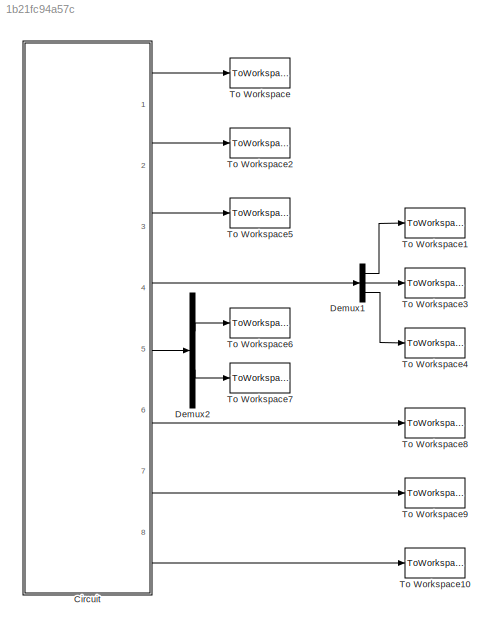
MODEL slx_1b21fc94a57c
KIND model
CONFIG AbsTol = auto
CONFIG EnableMultiTasking = off
CONFIG FixedStep = 0.00005
CONFIG MaxStep = auto
CONFIG MinStep = auto
CONFIG RelTol = 1e-3
CONFIG SampleTimeConstraint = Unconstrained
CONFIG Solver = FixedStepAuto
CONFIG SolverName = FixedStepAuto
CONFIG StartTime = 0.0
CONFIG StopTime = 0.3
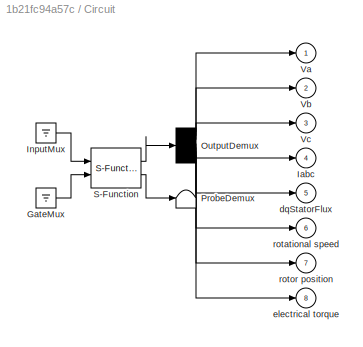
BLOCK [SubSystem] Circuit
  CopyFcn = plecs('sl', 203);
  DeleteFcn = plecs('sl', 205);
  DestroyFcn = plecs('sl', 207);
  ErrorFcn = plerrorfcn
  InitFcn = plecs('sl', 214);
  LoadFcn = plecs('sl', 200);
  NameChangeFcn = plecs('sl', 210);
  OpenFcn = plecs('sl', 202);
  Ports = [0, 8]
  PostSaveFcn = plecs('sl', 201);
  PreCopyFcn = plecs('sl', 216);
  PreSaveFcn = plecs('sl', 211);
  RequestExecContextInheritance = off
  StartFcn = plecs('sl', 208);
  StopFcn = plecs('sl', 209);
  UndoDeleteFcn = plecs('sl', 206);
  Variant = off
BLOCK [Ground] Circuit/ GateMux 
BLOCK [Ground] Circuit/ InputMux 
BLOCK [Demux] Circuit/ OutputDemux 
  Outputs = [ 1 1 1 3 2 1 1 1 ]
  Ports = [1, 8]
BLOCK [Terminator] Circuit/ ProbeDemux 
BLOCK [S-Function] Circuit/ S-Function 
  EnableBusSupport = off
  FunctionName = plecs
  Ports = [2, 2]
  SFcnIsStateOwnerBlock = off
  SFunctionDeploymentMode = off
BLOCK [Outport] Circuit/Iabc
  IconDisplay = Port number
  Port = 4
  PortDimensions = 3
BLOCK [Outport] Circuit/Va
  IconDisplay = Port number
  PortDimensions = 1
BLOCK [Outport] Circuit/Vb
  IconDisplay = Port number
  Port = 2
  PortDimensions = 1
BLOCK [Outport] Circuit/Vc
  IconDisplay = Port number
  Port = 3
  PortDimensions = 1
BLOCK [Outport] Circuit/dqStatorFlux
  IconDisplay = Port number
  Port = 5
  PortDimensions = 2
BLOCK [Outport] Circuit/electrical torque
  IconDisplay = Port number
  Port = 8
  PortDimensions = 1
BLOCK [Outport] Circuit/rotational speed
  IconDisplay = Port number
  Port = 6
  PortDimensions = 1
BLOCK [Outport] Circuit/rotor position
  IconDisplay = Port number
  Port = 7
  PortDimensions = 1
BLOCK [Demux] Demux1
  DisplayOption = bar
  Outputs = 3
  Ports = [1, 3]
BLOCK [Demux] Demux2
  DisplayOption = bar
  Outputs = 2
  Ports = [1, 2]
BLOCK [ToWorkspace] To Workspace
  FixptAsFi = on
  MaxDataPoints = inf
  Ports = [1]
  SampleTime = -1
  Save2DSignal = 3-D array (concatenate along third dimension)
  VariableName = VoltageA
BLOCK [ToWorkspace] To Workspace1
  FixptAsFi = on
  MaxDataPoints = inf
  Ports = [1]
  SampleTime = -1
  Save2DSignal = 3-D array (concatenate along third dimension)
  VariableName = CurrentA
BLOCK [ToWorkspace] To Workspace10
  FixptAsFi = on
  MaxDataPoints = inf
  Ports = [1]
  SampleTime = -1
  Save2DSignal = 3-D array (concatenate along third dimension)
  VariableName = Te
BLOCK [ToWorkspace] To Workspace2
  FixptAsFi = on
  MaxDataPoints = inf
  Ports = [1]
  SampleTime = -1
  Save2DSignal = 3-D array (concatenate along third dimension)
  VariableName = VoltageB
BLOCK [ToWorkspace] To Workspace3
  FixptAsFi = on
  MaxDataPoints = inf
  Ports = [1]
  SampleTime = -1
  Save2DSignal = 3-D array (concatenate along third dimension)
  VariableName = CurrentB
BLOCK [ToWorkspace] To Workspace4
  FixptAsFi = on
  MaxDataPoints = inf
  Ports = [1]
  SampleTime = -1
  Save2DSignal = 3-D array (concatenate along third dimension)
  VariableName = CurrentC
BLOCK [ToWorkspace] To Workspace5
  FixptAsFi = on
  MaxDataPoints = inf
  Ports = [1]
  SampleTime = -1
  Save2DSignal = 3-D array (concatenate along third dimension)
  VariableName = VoltageC
BLOCK [ToWorkspace] To Workspace6
  FixptAsFi = on
  MaxDataPoints = inf
  Ports = [1]
  SampleTime = -1
  Save2DSignal = 3-D array (concatenate along third dimension)
  VariableName = Flux_d
BLOCK [ToWorkspace] To Workspace7
  FixptAsFi = on
  MaxDataPoints = inf
  Ports = [1]
  SampleTime = -1
  Save2DSignal = 3-D array (concatenate along third dimension)
  VariableName = Flux_q
BLOCK [ToWorkspace] To Workspace8
  FixptAsFi = on
  MaxDataPoints = inf
  Ports = [1]
  SampleTime = -1
  Save2DSignal = 3-D array (concatenate along third dimension)
  VariableName = omega
BLOCK [ToWorkspace] To Workspace9
  FixptAsFi = on
  MaxDataPoints = inf
  Ports = [1]
  SampleTime = -1
  Save2DSignal = 3-D array (concatenate along third dimension)
  VariableName = theta
LINE Circuit:1 -> To Workspace:1
LINE Circuit:2 -> To Workspace2:1
LINE Circuit:3 -> To Workspace5:1
LINE Circuit:4 -> Demux1:1
LINE Circuit:5 -> Demux2:1
LINE Circuit:6 -> To Workspace8:1
LINE Circuit:7 -> To Workspace9:1
LINE Circuit:8 -> To Workspace10:1
LINE Demux1:1 -> To Workspace1:1
LINE Demux1:2 -> To Workspace3:1
LINE Demux1:3 -> To Workspace4:1
LINE Demux2:1 -> To Workspace6:1
LINE Demux2:2 -> To Workspace7:1
